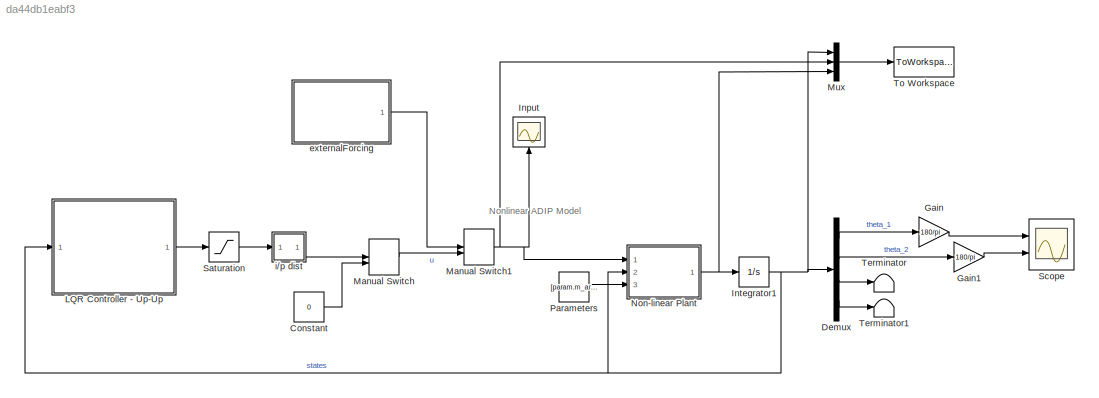
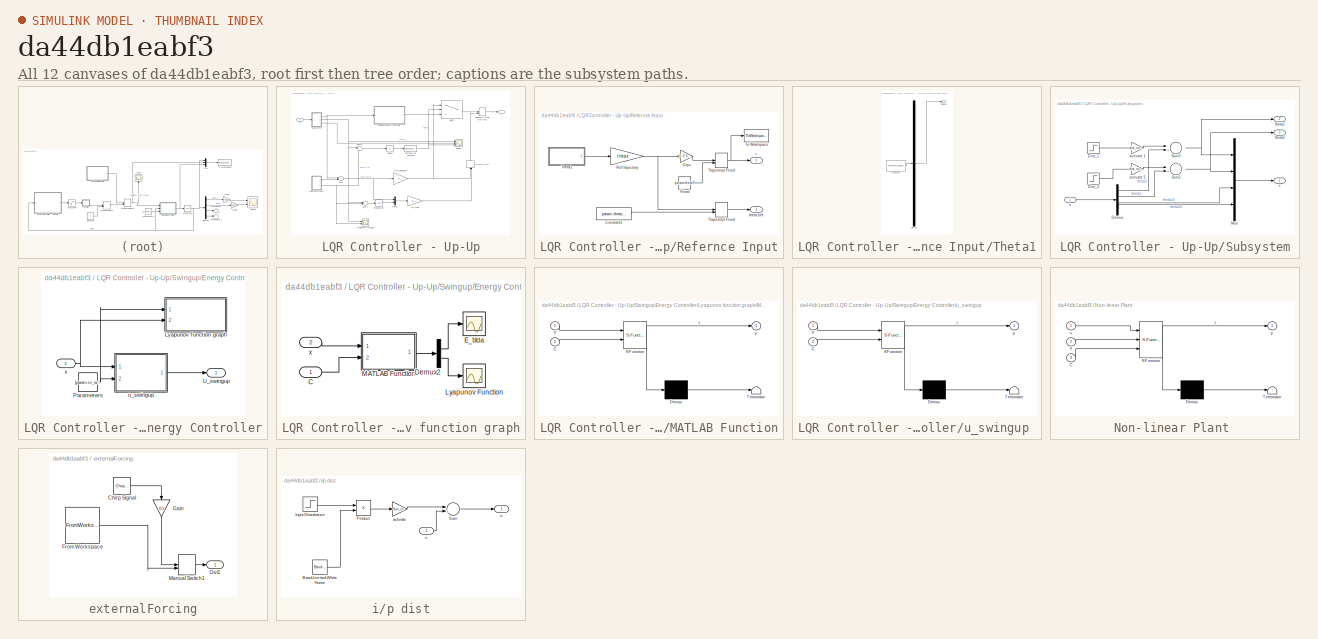
[diagram: thumbnail index - all 12 canvases of the model, root first then tree order]
MODEL slx_da44db1eabf3
KIND model
CONFIG AbsTol = auto
CONFIG EnableMultiTasking = off
CONFIG FixedStep = param.Ts
CONFIG MaxStep = 0.2
CONFIG MinStep = auto
CONFIG RelTol = 1e-3
CONFIG SampleTimeConstraint = Unconstrained
CONFIG Solver = ode4
CONFIG SolverName = ode4
CONFIG StartTime = 0.0
CONFIG StopTime = 8
BLOCK [Constant] Constant
  Commented = on
  Value = 0
BLOCK [Demux] Demux
  DisplayOption = bar
  Ports = [1, 4]
BLOCK [Gain] Gain
  Gain = 180/pi
  OutDataTypeStr = Inherit: Inherit via internal rule
  ParamDataTypeStr = Inherit: Inherit via internal rule
  SaturateOnIntegerOverflow = off
BLOCK [Gain] Gain1
  Gain = 180/pi
  OutDataTypeStr = Inherit: Inherit via internal rule
  ParamDataTypeStr = Inherit: Inherit via internal rule
  SaturateOnIntegerOverflow = off
BLOCK [Scope] Input
  Floating = off
  NumInputPorts = 1
  Ports = [1]
  ScopeSpecificationString = Simulink.scopes.TimeScopeBlockCfg('CurrentConfiguration', extmgr.ConfigurationSet(extmgr.Configuration('Core','General UI',true),extmgr.Configuration('Core','Source UI',true),extmgr.Configuration('Sources','WiredSimulink',true),extmgr.Configuration('Visuals','Time Domain',true,'SerializedDisplays',{struct('MinYLimReal','-0.125','MaxYLimReal','0.125','YLabelReal','','MinYLimMag','0.00000','MaxYLimM...<+1393ch>
BLOCK [Integrator] Integrator1
  InitialCondition = param.theta0
  Ports = [1, 1]
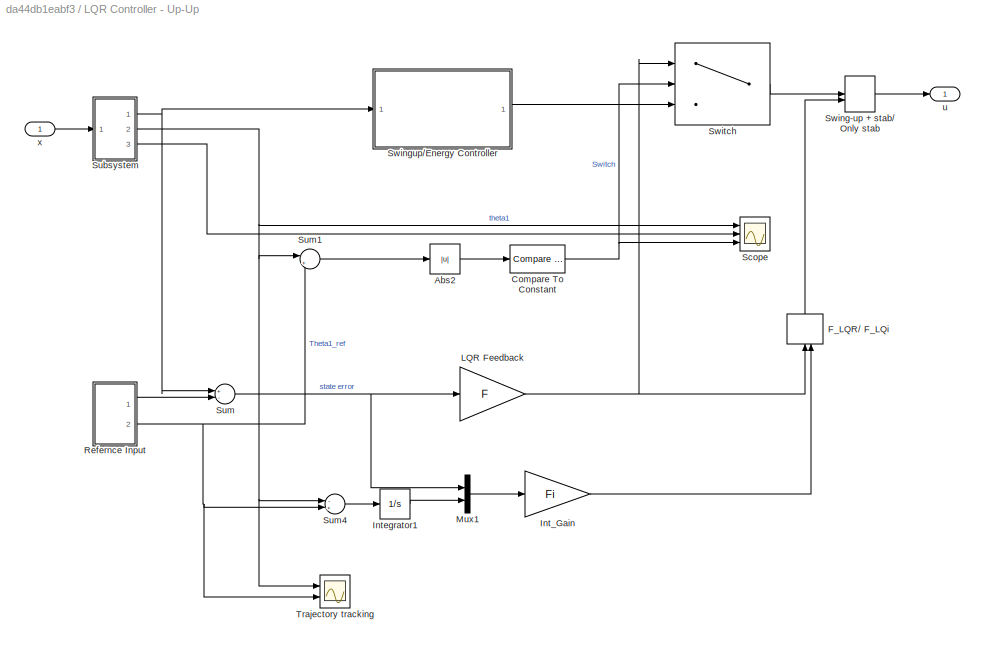
BLOCK [SubSystem] LQR Controller - Up-Up
  Commented = on
  Ports = [1, 1]
  RequestExecContextInheritance = off
BLOCK [Abs] LQR Controller - Up-Up/Abs2
  Commented = on
  SaturateOnIntegerOverflow = off
BLOCK [Reference] LQR Controller - Up-Up/Compare To Constant  REF=simulink/Logic and Bit
Operations/Compare
To Constant
  Commented = on
  Ports = [1, 1]
  SourceBlock = simulink/Logic and Bit\nOperations/Compare\nTo Constant
  SourceProductBaseCode = SL
  SourceProductName = Simulink
  SourceType = Compare To Constant
BLOCK [ManualSwitch] LQR Controller - Up-Up/F_LQR// F_LQi
  CurrentSetting = 0
BLOCK [Gain] LQR Controller - Up-Up/Int_Gain
  Gain = Fi
  Multiplication = Matrix(K*u)
  OutDataTypeStr = Inherit: Inherit via internal rule
  ParamDataTypeStr = Inherit: Inherit via internal rule
  SaturateOnIntegerOverflow = off
BLOCK [Integrator] LQR Controller - Up-Up/Integrator1
  Ports = [1, 1]
BLOCK [Gain] LQR Controller - Up-Up/LQR Feedback
  Gain = F
  Multiplication = Matrix(K*u)
  OutDataTypeStr = Inherit: Inherit via internal rule
  ParamDataTypeStr = Inherit: Inherit via internal rule
  SaturateOnIntegerOverflow = off
BLOCK [Mux] LQR Controller - Up-Up/Mux1
  DisplayOption = bar
  Inputs = 2
  Ports = [2, 1]
BLOCK [SubSystem] LQR Controller - Up-Up/Refernce Input
  Ports = [0, 2]
  RequestExecContextInheritance = off
BLOCK [Constant] LQR Controller - Up-Up/Refernce Input/Constant1
  Value = param.thetaT(1)
BLOCK [Constant] LQR Controller - Up-Up/Refernce Input/Fixed
  Value = param.thetaT
BLOCK [Gain] LQR Controller - Up-Up/Refernce Input/Gain
  Gain = [1 0 0 0]'
  Multiplication = Matrix(K*u)
  OutDataTypeStr = Inherit: Inherit via internal rule
  ParamDataTypeStr = Inherit: Inherit via internal rule
  SaturateOnIntegerOverflow = off
BLOCK [Gain] LQR Controller - Up-Up/Refernce Input/Ref trajectory
  Gain = rmax
  OutDataTypeStr = Inherit: Inherit via internal rule
  ParamDataTypeStr = Inherit: Inherit via internal rule
  SaturateOnIntegerOverflow = off
BLOCK [SubSystem] LQR Controller - Up-Up/Refernce Input/Theta1
  ClipboardFcn = sigbuilder_block('clipboard');
  CloseFcn = sigbuilder_block('close');
  ContinueFcn = sigbuilder_block('continue');
  CopyFcn = sigbuilder_block('copy');
  DeleteFcn = sigbuilder_block('delete');
  LoadFcn = sigbuilder_block('load');
  MaskHideContents = on
  ModelCloseFcn = sigbuilder_block('modelClose');
  NameChangeFcn = sigbuilder_block('namechange');
  OpenFcn = sigbuilder_block('open',[5.4 30.5 1141.2 989.5 ]);
  PauseFcn = sigbuilder_block('pause');
  Ports = [0, 1]
  PreSaveFcn = sigbuilder_block('preSave');
  RequestExecContextInheritance = off
  StartFcn = sigbuilder_block('start');
  StopFcn = sigbuilder_block('stop');
  Tag = STV Subsys
BLOCK [Demux] LQR Controller - Up-Up/Refernce Input/Theta1/Demux
  Outputs = 1
  Ports = [1, 1]
  Tag = STV Demux
BLOCK [FromWorkspace] LQR Controller - Up-Up/Refernce Input/Theta1/FromWs
  SampleTime = 0
  Tag = STV FromWs
  VariableName = tuvar
  ZeroCross = on
BLOCK [Outport] LQR Controller - Up-Up/Refernce Input/Theta1/Signal 1
  IconDisplay = Port number
  Tag = STV Outport
BLOCK [ToWorkspace] LQR Controller - Up-Up/Refernce Input/To Workspace
  FixptAsFi = on
  MaxDataPoints = inf
  Ports = [1]
  SampleTime = -1
  VariableName = Ref
BLOCK [ManualSwitch] LQR Controller - Up-Up/Refernce Input/Trajectory// Fixed
BLOCK [Outport] LQR Controller - Up-Up/Refernce Input/r
  IconDisplay = Port number
BLOCK [Outport] LQR Controller - Up-Up/Refernce Input/theta1ref
  IconDisplay = Port number
  Port = 2
BLOCK [Scope] LQR Controller - Up-Up/Scope
  Commented = on
  Floating = off
  NumInputPorts = 3
  Ports = [3]
  ScopeSpecificationString = Simulink.scopes.TimeScopeBlockCfg('CurrentConfiguration', extmgr.ConfigurationSet(extmgr.Configuration('Core','General UI',true),extmgr.Configuration('Core','Source UI',true),extmgr.Configuration('Sources','WiredSimulink',true,'DataLoggingVariableName','ScopeData1'),extmgr.Configuration('Visuals','Time Domain',true,'SerializedDisplays',{struct('MinYLimReal','0.62913','MaxYLimReal','4.33782','YLabe...<+1586ch>
BLOCK [SubSystem] LQR Controller - Up-Up/Subsystem
  Ports = [1, 3]
  RequestExecContextInheritance = off
BLOCK [Demux] LQR Controller - Up-Up/Subsystem/Demux
  DisplayOption = bar
  Ports = [1, 4]
BLOCK [Step] LQR Controller - Up-Up/Subsystem/Dist_1
  After = 0.1
  SampleTime = 0
  Time = 30
BLOCK [Step] LQR Controller - Up-Up/Subsystem/Dist_2
  After = 0.05
  SampleTime = 0
  Time = 20
BLOCK [Mux] LQR Controller - Up-Up/Subsystem/Mux
  DisplayOption = bar
  Ports = [4, 1]
BLOCK [Sum] LQR Controller - Up-Up/Subsystem/Sum2
  InputSameDT = off
  Inputs = |++
  OutDataTypeStr = Inherit: Inherit via internal rule
  Ports = [2, 1]
  SaturateOnIntegerOverflow = off
BLOCK [Sum] LQR Controller - Up-Up/Subsystem/Sum3
  InputSameDT = off
  Inputs = |++
  OutDataTypeStr = Inherit: Inherit via internal rule
  Ports = [2, 1]
  SaturateOnIntegerOverflow = off
BLOCK [Gain] LQR Controller - Up-Up/Subsystem/activate 1
  Gain = dist_out_1
  OutDataTypeStr = Inherit: Inherit via internal rule
  ParamDataTypeStr = Inherit: Inherit via internal rule
  SaturateOnIntegerOverflow = off
BLOCK [Gain] LQR Controller - Up-Up/Subsystem/activate 2
  Gain = dist_out_2
  OutDataTypeStr = Inherit: Inherit via internal rule
  ParamDataTypeStr = Inherit: Inherit via internal rule
  SaturateOnIntegerOverflow = off
BLOCK [Outport] LQR Controller - Up-Up/Subsystem/theta1
  IconDisplay = Port number
  Port = 2
BLOCK [Outport] LQR Controller - Up-Up/Subsystem/theta2
  IconDisplay = Port number
  Port = 3
BLOCK [Inport] LQR Controller - Up-Up/Subsystem/x
  IconDisplay = Port number
BLOCK [Outport] LQR Controller - Up-Up/Subsystem/x 
  IconDisplay = Port number
BLOCK [Sum] LQR Controller - Up-Up/Sum
  InputSameDT = off
  Inputs = +-
  OutDataTypeStr = Inherit: Inherit via internal rule
  Ports = [2, 1]
  SaturateOnIntegerOverflow = off
BLOCK [Sum] LQR Controller - Up-Up/Sum1
  IconShape = round
  InputSameDT = off
  Inputs = |+-
  OutDataTypeStr = Inherit: Inherit via internal rule
  Ports = [2, 1]
  SaturateOnIntegerOverflow = off
BLOCK [Sum] LQR Controller - Up-Up/Sum4
  InputSameDT = off
  Inputs = -+
  OutDataTypeStr = Inherit: Inherit via internal rule
  Ports = [2, 1]
  SaturateOnIntegerOverflow = off
BLOCK [ManualSwitch] LQR Controller - Up-Up/Swing-up + stab// Only stab 
  CurrentSetting = 0
BLOCK [SubSystem] LQR Controller - Up-Up/Swingup//Energy Controller
  Commented = on
  Ports = [1, 1]
  RequestExecContextInheritance = off
BLOCK [SubSystem] LQR Controller - Up-Up/Swingup//Energy Controller/Lyapunov function graph
  Ports = [2]
  RequestExecContextInheritance = off
BLOCK [Inport] LQR Controller - Up-Up/Swingup//Energy Controller/Lyapunov function graph/C
  IconDisplay = Port number
BLOCK [Demux] LQR Controller - Up-Up/Swingup//Energy Controller/Lyapunov function graph/Demux2
  DisplayOption = bar
  Outputs = 2
  Ports = [1, 2]
BLOCK [Scope] LQR Controller - Up-Up/Swingup//Energy Controller/Lyapunov function graph/E_tilda
  Floating = off
  NumInputPorts = 1
  Ports = [1]
  ScopeSpecificationString = Simulink.scopes.TimeScopeBlockCfg('CurrentConfiguration', extmgr.ConfigurationSet(extmgr.Configuration('Core','General UI',true),extmgr.Configuration('Core','Source UI',true),extmgr.Configuration('Sources','WiredSimulink',true,'DataLoggingVariableName','ScopeData1'),extmgr.Configuration('Visuals','Time Domain',true,'SerializedDisplays',{struct('MinYLimReal','-0.78953','MaxYLimReal','0.08773','YLab...<+1421ch>
BLOCK [Scope] LQR Controller - Up-Up/Swingup//Energy Controller/Lyapunov function graph/Lyapunov Function
  Floating = off
  NumInputPorts = 1
  Ports = [1]
  ScopeSpecificationString = Simulink.scopes.TimeScopeBlockCfg('CurrentConfiguration', extmgr.ConfigurationSet(extmgr.Configuration('Core','General UI',true),extmgr.Configuration('Core','Source UI',true),extmgr.Configuration('Sources','WiredSimulink',true,'DataLoggingVariableName','ScopeData1'),extmgr.Configuration('Visuals','Time Domain',true,'SerializedDisplays',{struct('MinYLimReal','-2.822','MaxYLimReal','25.39801','YLabe...<+1421ch>
BLOCK [SubSystem] LQR Controller - Up-Up/Swingup//Energy Controller/Lyapunov function graph/MATLAB Function
  ErrorFcn = Stateflow.Translate.translate
  PermitHierarchicalResolution = ExplicitOnly
  Ports = [2, 1]
  RequestExecContextInheritance = off
  SFBlockType = MATLAB Function
  TreatAsAtomicUnit = on
BLOCK [Demux] LQR Controller - Up-Up/Swingup//Energy Controller/Lyapunov function graph/MATLAB Function/ Demux 
  Outputs = 1
  Ports = [1, 1]
BLOCK [S-Function] LQR Controller - Up-Up/Swingup//Energy Controller/Lyapunov function graph/MATLAB Function/ SFunction 
  EnableBusSupport = on
  FunctionName = sf_sfun
  PortCounts = [2 2]
  Ports = [2, 2]
  SFcnIsStateOwnerBlock = off
  SFunctionDeploymentMode = off
  Tag = Stateflow S-Function sim_dataGenerator 3
BLOCK [Terminator] LQR Controller - Up-Up/Swingup//Energy Controller/Lyapunov function graph/MATLAB Function/ Terminator 
BLOCK [Inport] LQR Controller - Up-Up/Swingup//Energy Controller/Lyapunov function graph/MATLAB Function/C
  IconDisplay = Port number
  Port = 2
BLOCK [Inport] LQR Controller - Up-Up/Swingup//Energy Controller/Lyapunov function graph/MATLAB Function/Y
  IconDisplay = Port number
BLOCK [Outport] LQR Controller - Up-Up/Swingup//Energy Controller/Lyapunov function graph/MATLAB Function/y
  IconDisplay = Port number
BLOCK [Inport] LQR Controller - Up-Up/Swingup//Energy Controller/Lyapunov function graph/x
  IconDisplay = Port number
  Port = 2
BLOCK [Constant] LQR Controller - Up-Up/Swingup//Energy Controller/Parameters
  Value = [param.m_arm,param.m_pend,param.m_hinge,param.l_pivot,param.l_pend,param.g,param.Jarm,param.Jpend,param.Jl,param.Jhinge, param.C_arm,param.C_pend,param.Kp,param.Kd,param.Ke]
BLOCK [Outport] LQR Controller - Up-Up/Swingup//Energy Controller/U_swingup
  IconDisplay = Port number
BLOCK [SubSystem] LQR Controller - Up-Up/Swingup//Energy Controller/u_swingup 
  ErrorFcn = Stateflow.Translate.translate
  PermitHierarchicalResolution = ExplicitOnly
  Ports = [2, 1]
  RequestExecContextInheritance = off
  SFBlockType = MATLAB Function
  TreatAsAtomicUnit = on
BLOCK [Demux] LQR Controller - Up-Up/Swingup//Energy Controller/u_swingup / Demux 
  Outputs = 1
  Ports = [1, 1]
BLOCK [S-Function] LQR Controller - Up-Up/Swingup//Energy Controller/u_swingup / SFunction 
  EnableBusSupport = on
  FunctionName = sf_sfun
  PortCounts = [2 2]
  Ports = [2, 2]
  SFcnIsStateOwnerBlock = off
  SFunctionDeploymentMode = off
  Tag = Stateflow S-Function sim_dataGenerator 1
BLOCK [Terminator] LQR Controller - Up-Up/Swingup//Energy Controller/u_swingup / Terminator 
BLOCK [Inport] LQR Controller - Up-Up/Swingup//Energy Controller/u_swingup /C
  IconDisplay = Port number
  Port = 2
BLOCK [Inport] LQR Controller - Up-Up/Swingup//Energy Controller/u_swingup /Y
  IconDisplay = Port number
BLOCK [Outport] LQR Controller - Up-Up/Swingup//Energy Controller/u_swingup /y
  IconDisplay = Port number
BLOCK [Inport] LQR Controller - Up-Up/Swingup//Energy Controller/x
  IconDisplay = Port number
BLOCK [Switch] LQR Controller - Up-Up/Switch
  Commented = on
  Criteria = u2 > Threshold
  InputSameDT = off
  SaturateOnIntegerOverflow = off
  Threshold = 0.5
BLOCK [Scope] LQR Controller - Up-Up/Trajectory tracking
  Floating = off
  NumInputPorts = 2
  Ports = [2]
  ScopeSpecificationString = Simulink.scopes.TimeScopeBlockCfg('CurrentConfiguration', extmgr.ConfigurationSet(extmgr.Configuration('Core','General UI',true),extmgr.Configuration('Core','Source UI',true),extmgr.Configuration('Sources','WiredSimulink',true,'DataLoggingVariableName','ScopeData1'),extmgr.Configuration('Visuals','Time Domain',true,'SerializedDisplays',{struct('MinYLimReal','-1.01695','MaxYLimReal','1.03179','YLab...<+1556ch>
BLOCK [Outport] LQR Controller - Up-Up/u
  IconDisplay = Port number
BLOCK [Inport] LQR Controller - Up-Up/x
  IconDisplay = Port number
BLOCK [ManualSwitch] Manual Switch
  Commented = on
BLOCK [ManualSwitch] Manual Switch1
BLOCK [Mux] Mux
  DisplayOption = bar
  Inputs = 3
  Ports = [3, 1]
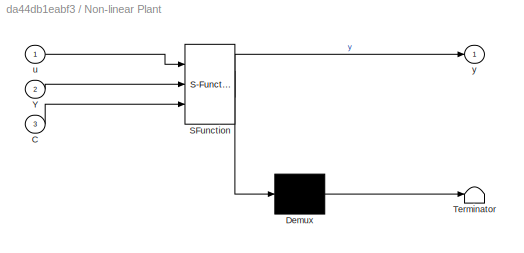
BLOCK [SubSystem] Non-linear Plant 
  ErrorFcn = Stateflow.Translate.translate
  PermitHierarchicalResolution = ExplicitOnly
  Ports = [3, 1]
  RequestExecContextInheritance = off
  SFBlockType = MATLAB Function
  TreatAsAtomicUnit = on
BLOCK [Demux] Non-linear Plant / Demux 
  Outputs = 1
  Ports = [1, 1]
BLOCK [S-Function] Non-linear Plant / SFunction 
  EnableBusSupport = on
  FunctionName = sf_sfun
  PortCounts = [3 2]
  Ports = [3, 2]
  SFcnIsStateOwnerBlock = off
  SFunctionDeploymentMode = off
  Tag = Stateflow S-Function sim_dataGenerator 2
BLOCK [Terminator] Non-linear Plant / Terminator 
BLOCK [Inport] Non-linear Plant /C
  IconDisplay = Port number
  Port = 3
BLOCK [Inport] Non-linear Plant /Y
  IconDisplay = Port number
  Port = 2
BLOCK [Inport] Non-linear Plant /u
  IconDisplay = Port number
BLOCK [Outport] Non-linear Plant /y
  IconDisplay = Port number
BLOCK [Constant] Parameters
  Value = [param.m_arm,param.m_pend,param.m_hinge,param.l_pivot,param.l_pend,param.g,param.Jarm,param.Jpend,param.Jl,param.Jhinge, param.C_arm,param.C_pend]
BLOCK [Saturate] Saturation
  Commented = on
  InputPortMap = u0
  LowerLimit = -1.6
  Ports = [1, 1]
  UpperLimit = 1.6
BLOCK [Scope] Scope
  Floating = off
  NumInputPorts = 2
  Ports = [2]
  ScopeSpecificationString = Simulink.scopes.TimeScopeBlockCfg('CurrentConfiguration', extmgr.ConfigurationSet(extmgr.Configuration('Core','General UI',true,'FigureColor',[0 0 0]),extmgr.Configuration('Core','Source UI',true),extmgr.Configuration('Sources','WiredSimulink',true,'DataLoggingVariableName','ScopeData1'),extmgr.Configuration('Visuals','Time Domain',true,'SerializedDisplays',{struct('MinYLimReal','165.27594','MaxYL...<+1811ch>
BLOCK [Terminator] Terminator
BLOCK [Terminator] Terminator1
BLOCK [ToWorkspace] To Workspace
  FixptAsFi = on
  MaxDataPoints = inf
  Ports = [1]
  SampleTime = -1
  VariableName = data
BLOCK [SubSystem] externalForcing
  Ports = [0, 1]
  RequestExecContextInheritance = off
BLOCK [Reference] externalForcing/Chirp Signal  REF=simulink/Sources/Chirp Signal
  Ports = [0, 1]
  SourceBlock = simulink/Sources/Chirp Signal
  SourceProductBaseCode = SL
  SourceProductName = Simulink
  SourceType = chirp
BLOCK [FromWorkspace] externalForcing/From Workspace
  SampleTime = 0
  VariableName = [t,u1']
  ZeroCross = on
BLOCK [Gain] externalForcing/Gain
  Gain = 0.1
  OutDataTypeStr = Inherit: Inherit via internal rule
  ParamDataTypeStr = Inherit: Inherit via internal rule
  SaturateOnIntegerOverflow = off
BLOCK [ManualSwitch] externalForcing/Manual Switch1
  CurrentSetting = 0
BLOCK [Outport] externalForcing/Out1
  IconDisplay = Port number
BLOCK [SubSystem] i//p dist
  Commented = on
  Ports = [1, 1]
  RequestExecContextInheritance = off
BLOCK [Outport] i//p dist/ u 
  IconDisplay = Port number
BLOCK [Reference] i//p dist/Band-Limited White Noise  REF=simulink/Sources/Band-Limited
White Noise
  Ports = [0, 1]
  SourceBlock = simulink/Sources/Band-Limited\nWhite Noise
  SourceProductBaseCode = SL
  SourceProductName = Simulink
  SourceType = Band-Limited White Noise.
BLOCK [Step] i//p dist/Input Disturbance
  After = 0.05
  SampleTime = 0
  Time = 0
BLOCK [Product] i//p dist/Product
  InputSameDT = off
  OutDataTypeStr = Inherit: Inherit via internal rule
  Ports = [2, 1]
  RndMeth = Floor
  SaturateOnIntegerOverflow = off
BLOCK [Sum] i//p dist/Sum
  InputSameDT = off
  Inputs = |++
  OutDataTypeStr = Inherit: Inherit via internal rule
  Ports = [2, 1]
  SaturateOnIntegerOverflow = off
BLOCK [Gain] i//p dist/activate
  Gain = dist_in
  OutDataTypeStr = Inherit: Inherit via internal rule
  ParamDataTypeStr = Inherit: Inherit via internal rule
  SaturateOnIntegerOverflow = off
BLOCK [Inport] i//p dist/u
  IconDisplay = Port number
ANNOTATION (root): Nonlinear ADIP Model
LINE Constant:1 -> Manual Switch:2
LINE Demux:1 -> Gain:1
LINE Demux:2 -> Gain1:1
LINE Demux:3 -> Terminator:1
LINE Demux:4 -> Terminator1:1
LINE Gain1:1 -> Scope:2
LINE Gain:1 -> Scope:1
NET Integrator1:1 -> Demux:1, LQR Controller - Up-Up:1, Mux:1, Non-linear Plant :2
LINE LQR Controller - Up-Up/Abs2:1 -> LQR Controller - Up-Up/Compare To Constant:1
NET LQR Controller - Up-Up/Compare To Constant:1 -> LQR Controller - Up-Up/Scope:3, LQR Controller - Up-Up/Switch:2
LINE LQR Controller - Up-Up/F_LQR// F_LQi:1 -> LQR Controller - Up-Up/Swing-up + stab// Only stab :2
LINE LQR Controller - Up-Up/Int_Gain:1 -> LQR Controller - Up-Up/F_LQR// F_LQi:2
LINE LQR Controller - Up-Up/Integrator1:1 -> LQR Controller - Up-Up/Mux1:2
NET LQR Controller - Up-Up/LQR Feedback:1 -> LQR Controller - Up-Up/F_LQR// F_LQi:1, LQR Controller - Up-Up/Switch:1
LINE LQR Controller - Up-Up/Mux1:1 -> LQR Controller - Up-Up/Int_Gain:1
LINE LQR Controller - Up-Up/Refernce Input/Constant1:1 -> LQR Controller - Up-Up/Refernce Input/Trajectory// Fixed:2
LINE LQR Controller - Up-Up/Refernce Input/Fixed:1 -> LQR Controller - Up-Up/Refernce Input/Trajectory// Fixed:2
LINE LQR Controller - Up-Up/Refernce Input/Gain:1 -> LQR Controller - Up-Up/Refernce Input/Trajectory// Fixed:1
NET LQR Controller - Up-Up/Refernce Input/Ref trajectory:1 -> LQR Controller - Up-Up/Refernce Input/Gain:1, LQR Controller - Up-Up/Refernce Input/Trajectory// Fixed:1
LINE LQR Controller - Up-Up/Refernce Input/Theta1:1 -> LQR Controller - Up-Up/Refernce Input/Ref trajectory:1
NET LQR Controller - Up-Up/Refernce Input/Trajectory// Fixed:1 -> LQR Controller - Up-Up/Refernce Input/To Workspace:1, LQR Controller - Up-Up/Refernce Input/r:1, LQR Controller - Up-Up/Refernce Input/theta1ref:1
LINE LQR Controller - Up-Up/Refernce Input:1 -> LQR Controller - Up-Up/Sum:2
NET LQR Controller - Up-Up/Refernce Input:2 -> LQR Controller - Up-Up/Sum1:2, LQR Controller - Up-Up/Sum4:2, LQR Controller - Up-Up/Trajectory tracking:2
LINE LQR Controller - Up-Up/Subsystem/Demux:1 -> LQR Controller - Up-Up/Subsystem/Sum3:2
LINE LQR Controller - Up-Up/Subsystem/Demux:2 -> LQR Controller - Up-Up/Subsystem/Sum2:2
LINE LQR Controller - Up-Up/Subsystem/Demux:3 -> LQR Controller - Up-Up/Subsystem/Mux:3
LINE LQR Controller - Up-Up/Subsystem/Demux:4 -> LQR Controller - Up-Up/Subsystem/Mux:4
LINE LQR Controller - Up-Up/Subsystem/Dist_1:1 -> LQR Controller - Up-Up/Subsystem/activate 1:1
LINE LQR Controller - Up-Up/Subsystem/Dist_2:1 -> LQR Controller - Up-Up/Subsystem/activate 2:1
LINE LQR Controller - Up-Up/Subsystem/Mux:1 -> LQR Controller - Up-Up/Subsystem/x :1
NET LQR Controller - Up-Up/Subsystem/Sum2:1 -> LQR Controller - Up-Up/Subsystem/Mux:2, LQR Controller - Up-Up/Subsystem/theta2:1
NET LQR Controller - Up-Up/Subsystem/Sum3:1 -> LQR Controller - Up-Up/Subsystem/Mux:1, LQR Controller - Up-Up/Subsystem/theta1:1
LINE LQR Controller - Up-Up/Subsystem/activate 1:1 -> LQR Controller - Up-Up/Subsystem/Sum3:1
LINE LQR Controller - Up-Up/Subsystem/activate 2:1 -> LQR Controller - Up-Up/Subsystem/Sum2:1
LINE LQR Controller - Up-Up/Subsystem/x:1 -> LQR Controller - Up-Up/Subsystem/Demux:1
NET LQR Controller - Up-Up/Subsystem:1 -> LQR Controller - Up-Up/Sum:1, LQR Controller - Up-Up/Swingup//Energy Controller:1
NET LQR Controller - Up-Up/Subsystem:2 -> LQR Controller - Up-Up/Scope:1, LQR Controller - Up-Up/Sum1:1, LQR Controller - Up-Up/Sum4:1, LQR Controller - Up-Up/Trajectory tracking:1
LINE LQR Controller - Up-Up/Subsystem:3 -> LQR Controller - Up-Up/Scope:2
LINE LQR Controller - Up-Up/Sum1:1 -> LQR Controller - Up-Up/Abs2:1
LINE LQR Controller - Up-Up/Sum4:1 -> LQR Controller - Up-Up/Integrator1:1
NET LQR Controller - Up-Up/Sum:1 -> LQR Controller - Up-Up/LQR Feedback:1, LQR Controller - Up-Up/Mux1:1
LINE LQR Controller - Up-Up/Swing-up + stab// Only stab :1 -> LQR Controller - Up-Up/u:1
LINE LQR Controller - Up-Up/Swingup//Energy Controller/Lyapunov function graph/C:1 -> LQR Controller - Up-Up/Swingup//Energy Controller/Lyapunov function graph/MATLAB Function:2
LINE LQR Controller - Up-Up/Swingup//Energy Controller/Lyapunov function graph/Demux2:1 -> LQR Controller - Up-Up/Swingup//Energy Controller/Lyapunov function graph/E_tilda:1
LINE LQR Controller - Up-Up/Swingup//Energy Controller/Lyapunov function graph/Demux2:2 -> LQR Controller - Up-Up/Swingup//Energy Controller/Lyapunov function graph/Lyapunov Function:1
LINE LQR Controller - Up-Up/Swingup//Energy Controller/Lyapunov function graph/MATLAB Function:1 -> LQR Controller - Up-Up/Swingup//Energy Controller/Lyapunov function graph/Demux2:1
LINE LQR Controller - Up-Up/Swingup//Energy Controller/Lyapunov function graph/x:1 -> LQR Controller - Up-Up/Swingup//Energy Controller/Lyapunov function graph/MATLAB Function:1
NET LQR Controller - Up-Up/Swingup//Energy Controller/Parameters:1 -> LQR Controller - Up-Up/Swingup//Energy Controller/Lyapunov function graph:1, LQR Controller - Up-Up/Swingup//Energy Controller/u_swingup :2
LINE LQR Controller - Up-Up/Swingup//Energy Controller/u_swingup :1 -> LQR Controller - Up-Up/Swingup//Energy Controller/U_swingup:1
NET LQR Controller - Up-Up/Swingup//Energy Controller/x:1 -> LQR Controller - Up-Up/Swingup//Energy Controller/Lyapunov function graph:2, LQR Controller - Up-Up/Swingup//Energy Controller/u_swingup :1
LINE LQR Controller - Up-Up/Swingup//Energy Controller:1 -> LQR Controller - Up-Up/Switch:3
LINE LQR Controller - Up-Up/Switch:1 -> LQR Controller - Up-Up/Swing-up + stab// Only stab :1
LINE LQR Controller - Up-Up/x:1 -> LQR Controller - Up-Up/Subsystem:1
LINE LQR Controller - Up-Up:1 -> Saturation:1
NET Manual Switch1:1 -> Input:1, Mux:2, Non-linear Plant :1
LINE Manual Switch:1 -> Manual Switch1:2
LINE Mux:1 -> To Workspace:1
NET Non-linear Plant :1 -> Integrator1:1, Mux:3
LINE Parameters:1 -> Non-linear Plant :3
LINE Saturation:1 -> i//p dist:1
LINE externalForcing/Chirp Signal:1 -> externalForcing/Gain:1
LINE externalForcing/From Workspace:1 -> externalForcing/Manual Switch1:2
LINE externalForcing/Gain:1 -> externalForcing/Manual Switch1:1
LINE externalForcing/Manual Switch1:1 -> externalForcing/Out1:1
LINE externalForcing:1 -> Manual Switch1:1
LINE i//p dist/Band-Limited White Noise:1 -> i//p dist/Product:2
LINE i//p dist/Input Disturbance:1 -> i//p dist/Product:1
LINE i//p dist/Product:1 -> i//p dist/activate:1
LINE i//p dist/Sum:1 -> i//p dist/ u :1
LINE i//p dist/activate:1 -> i//p dist/Sum:1
LINE i//p dist/u:1 -> i//p dist/Sum:2
LINE i//p dist:1 -> Manual Switch:1
note: NET lines group one-source signal fan-out (src -> all destinations, sorted); 1:1 wires keep LINE
CHART LQR Controller - Up-Up/Swingup//Energy Controller/u_swingup
 states=1 transitions=1
  STATE_LABEL 'eML_blk_kernel()'
  STATE_LABEL 'SCRIPT:\nfunction y = fcn(Y, C)\nm1=C(1); % Mass of arm\nm2=C(2); % Mass of pendulum\nmh = C(3); % Mass of Hinge\nl1  = C(4); % Length of arm\nl2 = C(5); % Length of pendulum\ng_ = C(6);\nJ_arm = C(7);\nJ_pend = C(8);\nJ_motor = C(9);\nJ_sensor = C(10);\nfv1 = C(11);\nfv2 = C(12);\n\ny1 = Y(1);  % actual theta1          \ny2 = Y(2);  % actual theta2\ny3 = Y(3);  % actual theta1d\ny4 = Y(4);  % actual theta2d\n\nKp = ...<+1227ch>'
CHART Non-linear 
Plant
 states=1 transitions=1
  STATE_LABEL 'eML_blk_kernel()'
  STATE_LABEL 'SCRIPT:\nfunction y = fcn(u,Y,C)\nm1=C(1); % Mass of arm\nm2=C(2); % Mass of pendulum\nmh = C(3); % Mass of Hinge\nl1  = C(4); % Length of arm\nl2 = C(5); % Length of pendulum\ng_ = C(6);\nJ_arm = C(7);\nJ_pend = C(8);\nJ_motor = C(9);\nJ_sensor = C(10);\nfv1 = C(11);\nfv2 = C(12);\n\ny1 = Y(1);  % actual theta1          \ny2 = Y(2);  % actual theta2\ny3 = Y(3);  % actual theta1d\ny4 = Y(4);  % actual theta2d\n\ndy1 ...<+1551ch>'
CHART LQR Controller - Up-Up/Swingup//Energy Controller/Lyapunov function graph/MATLAB Function states=1 transitions=1
  STATE_LABEL 'eML_blk_kernel()'
  STATE_LABEL 'SCRIPT:\nfunction y = fcn(Y,C)\n\nm1=C(1); % Mass of arm\nm2=C(2); % Mass of pendulum\nmh = C(3); % Mass of Hinge\nl1  = C(4); % Length of arm\nl2 = C(5); % Length of pendulum\ng_ = C(6);\nJ_arm = C(7);\nJ_pend = C(8);\nJ_motor = C(9);\nJ_sensor = C(10);\nfv1 = C(11);\nfv2 = C(12);\n\ny1 = Y(1);  % actual theta1          \ny2 = Y(2);  % actual theta2\ny3 = Y(3);  % actual theta1d\ny4 = Y(4);  % actual theta2d\n\nKp = ...<+356ch>'
